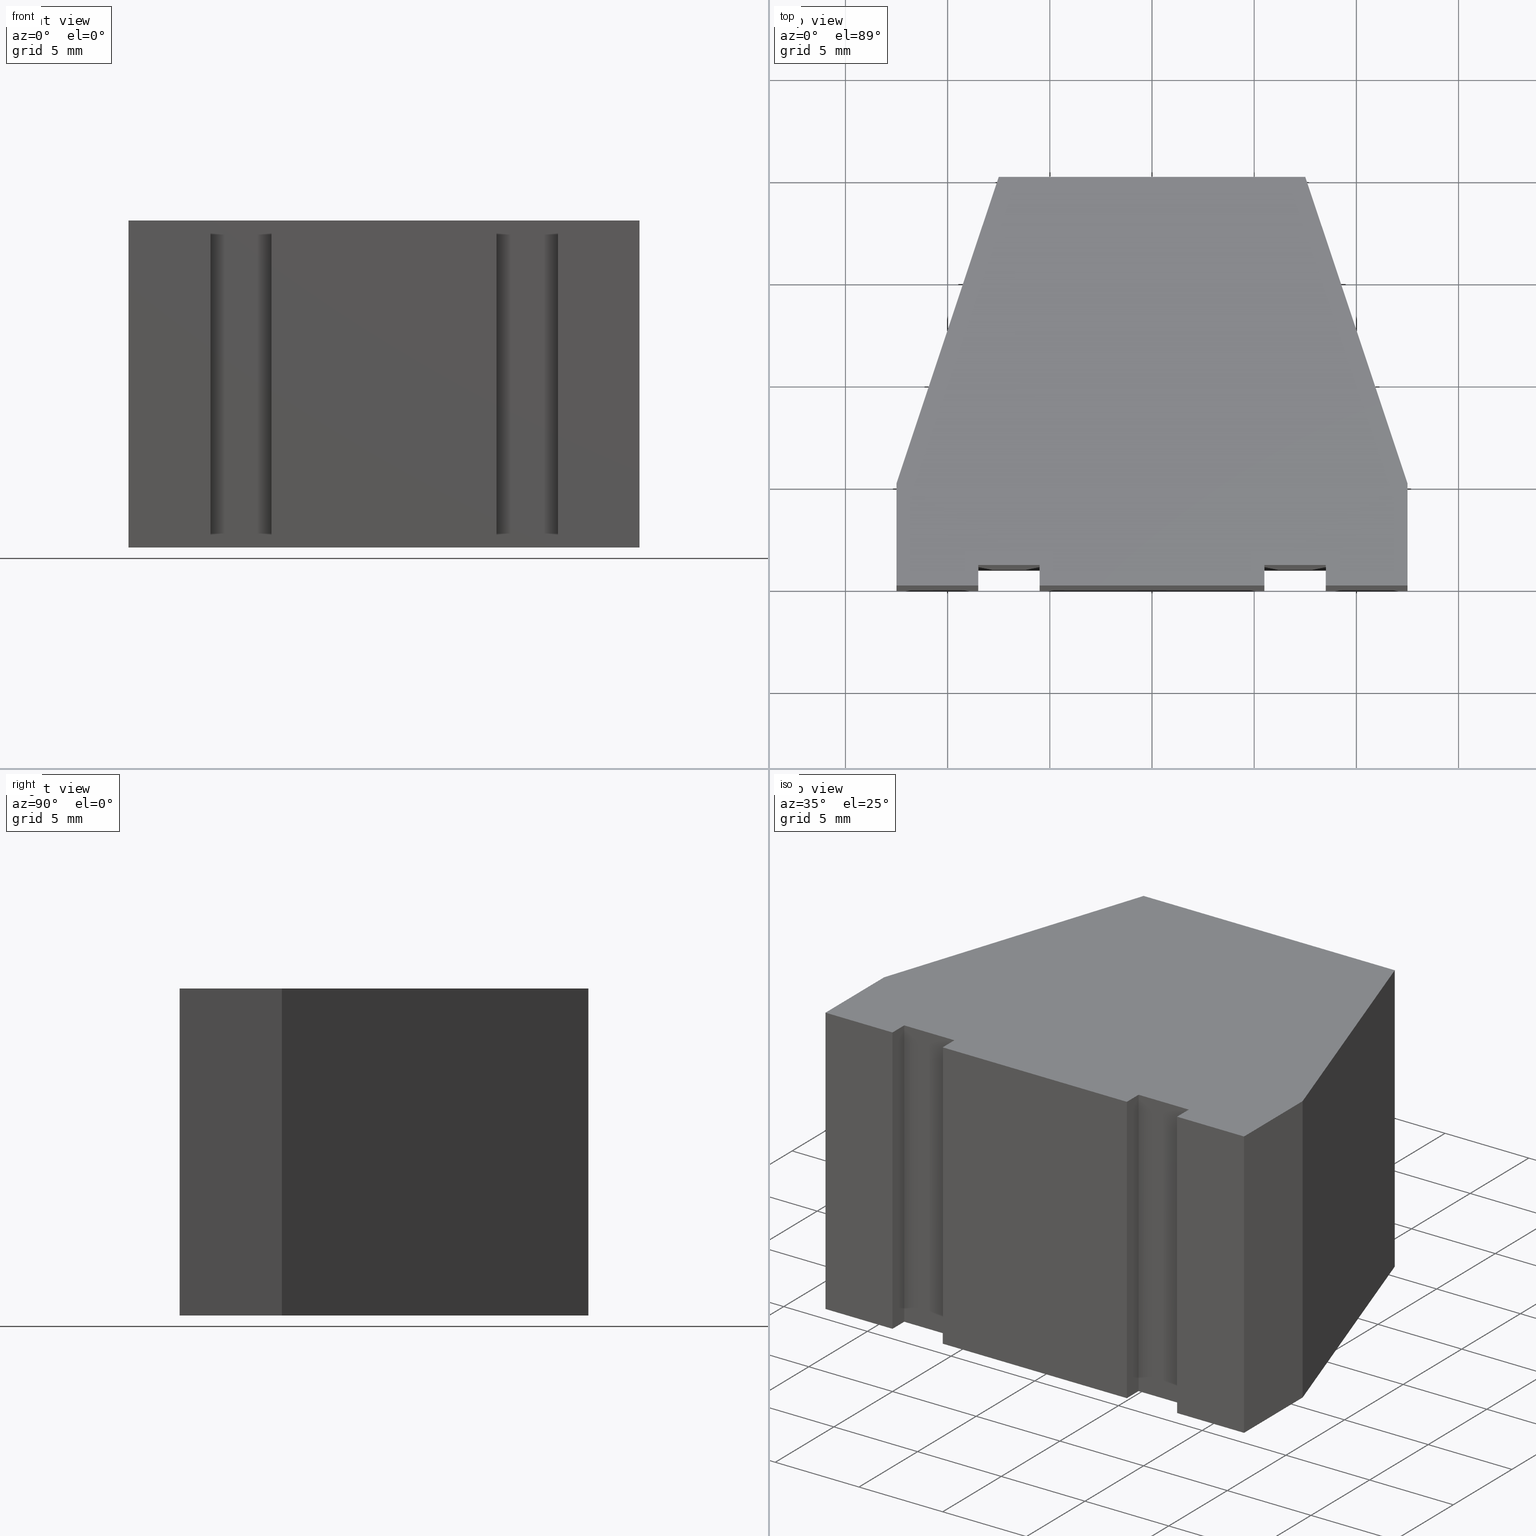
[diagram: canonical four-view strip — front | top / right | iso, engineering-drawing reading convention]
A machine part, canonical four-view strip (front | top / right | iso — engineering-drawing reading convention). The complete STEP part file that produces these views, byte-faithful:
ISO-10303-21;
HEADER;
/* Generated by software containing ST-Developer
 * from STEP Tools, Inc. (www.steptools.com) 
 */

FILE_DESCRIPTION(
/* description */ (''),
/* implementation_level */ '2;1');

FILE_NAME(
/* name */ 'E_3_01_06_07_00_WKZ-0113.stp',
/* time_stamp */ '2025-11-24T11:40:00+01:00',
/* author */ ('d.fischer'),
/* organization */ (''),
/* preprocessor_version */ 'ST-DEVELOPER v20',
/* originating_system */ 'Autodesk Inventor 2025',
/* authorisation */ '');

FILE_SCHEMA (('AUTOMOTIVE_DESIGN { 1 0 10303 214 3 1 1 }'));
ENDSEC;

DATA;
#10=MECHANICAL_DESIGN_GEOMETRIC_PRESENTATION_REPRESENTATION('',(#14,#15,
#16,#17),#525);
#11=SHAPE_REPRESENTATION_RELATIONSHIP('SRR','None',#532,#12);
#12=ADVANCED_BREP_SHAPE_REPRESENTATION('',(#13),#524);
#13=MANIFOLD_SOLID_BREP('Volumenk\X\F6rper1',#320);
#14=STYLED_ITEM('',(#542),#308);
#15=STYLED_ITEM('',(#541),#312);
#16=STYLED_ITEM('',(#541),#318);
#17=STYLED_ITEM('',(#541),#13);
#18=FACE_OUTER_BOUND('',#34,.T.);
#19=FACE_OUTER_BOUND('',#35,.T.);
#20=FACE_OUTER_BOUND('',#36,.T.);
#21=FACE_OUTER_BOUND('',#37,.T.);
#22=FACE_OUTER_BOUND('',#38,.T.);
#23=FACE_OUTER_BOUND('',#39,.T.);
#24=FACE_OUTER_BOUND('',#40,.T.);
#25=FACE_OUTER_BOUND('',#41,.T.);
#26=FACE_OUTER_BOUND('',#42,.T.);
#27=FACE_OUTER_BOUND('',#43,.T.);
#28=FACE_OUTER_BOUND('',#44,.T.);
#29=FACE_OUTER_BOUND('',#45,.T.);
#30=FACE_OUTER_BOUND('',#46,.T.);
#31=FACE_OUTER_BOUND('',#47,.T.);
#32=FACE_OUTER_BOUND('',#48,.T.);
#33=FACE_OUTER_BOUND('',#49,.T.);
#34=EDGE_LOOP('',(#204,#205,#206,#207,#208,#209,#210,#211,#212,#213,#214,
#215,#216,#217));
#35=EDGE_LOOP('',(#218,#219,#220,#221));
#36=EDGE_LOOP('',(#222,#223,#224,#225));
#37=EDGE_LOOP('',(#226,#227,#228,#229));
#38=EDGE_LOOP('',(#230,#231,#232,#233));
#39=EDGE_LOOP('',(#234,#235,#236,#237));
#40=EDGE_LOOP('',(#238,#239,#240,#241));
#41=EDGE_LOOP('',(#242,#243,#244,#245));
#42=EDGE_LOOP('',(#246,#247,#248,#249));
#43=EDGE_LOOP('',(#250,#251,#252,#253));
#44=EDGE_LOOP('',(#254,#255,#256,#257));
#45=EDGE_LOOP('',(#258,#259,#260,#261));
#46=EDGE_LOOP('',(#262,#263,#264,#265));
#47=EDGE_LOOP('',(#266,#267,#268,#269));
#48=EDGE_LOOP('',(#270,#271,#272,#273));
#49=EDGE_LOOP('',(#274,#275,#276,#277,#278,#279,#280,#281,#282,#283,#284,
#285,#286,#287));
#50=LINE('',#439,#92);
#51=LINE('',#441,#93);
#52=LINE('',#443,#94);
#53=LINE('',#445,#95);
#54=LINE('',#447,#96);
#55=LINE('',#449,#97);
#56=LINE('',#451,#98);
#57=LINE('',#453,#99);
#58=LINE('',#455,#100);
#59=LINE('',#457,#101);
#60=LINE('',#459,#102);
#61=LINE('',#461,#103);
#62=LINE('',#463,#104);
#63=LINE('',#464,#105);
#64=LINE('',#468,#106);
#65=LINE('',#469,#107);
#66=LINE('',#470,#108);
#67=LINE('',#473,#109);
#68=LINE('',#474,#110);
#69=LINE('',#477,#111);
#70=LINE('',#478,#112);
#71=LINE('',#481,#113);
#72=LINE('',#482,#114);
#73=LINE('',#485,#115);
#74=LINE('',#486,#116);
#75=LINE('',#489,#117);
#76=LINE('',#490,#118);
#77=LINE('',#493,#119);
#78=LINE('',#494,#120);
#79=LINE('',#497,#121);
#80=LINE('',#498,#122);
#81=LINE('',#501,#123);
#82=LINE('',#502,#124);
#83=LINE('',#505,#125);
#84=LINE('',#506,#126);
#85=LINE('',#509,#127);
#86=LINE('',#510,#128);
#87=LINE('',#513,#129);
#88=LINE('',#514,#130);
#89=LINE('',#517,#131);
#90=LINE('',#518,#132);
#91=LINE('',#520,#133);
#92=VECTOR('',#363,10.);
#93=VECTOR('',#364,10.);
#94=VECTOR('',#365,10.);
#95=VECTOR('',#366,10.);
#96=VECTOR('',#367,10.);
#97=VECTOR('',#368,10.);
#98=VECTOR('',#369,10.);
#99=VECTOR('',#370,10.);
#100=VECTOR('',#371,10.);
#101=VECTOR('',#372,10.);
#102=VECTOR('',#373,10.);
#103=VECTOR('',#374,10.);
#104=VECTOR('',#375,10.);
#105=VECTOR('',#376,10.);
#106=VECTOR('',#379,10.);
#107=VECTOR('',#380,10.);
#108=VECTOR('',#381,10.);
#109=VECTOR('',#384,10.);
#110=VECTOR('',#385,10.);
#111=VECTOR('',#388,10.);
#112=VECTOR('',#389,10.);
#113=VECTOR('',#392,10.);
#114=VECTOR('',#393,10.);
#115=VECTOR('',#396,10.);
#116=VECTOR('',#397,10.);
#117=VECTOR('',#400,10.);
#118=VECTOR('',#401,10.);
#119=VECTOR('',#404,10.);
#120=VECTOR('',#405,10.);
#121=VECTOR('',#408,10.);
#122=VECTOR('',#409,10.);
#123=VECTOR('',#412,10.);
#124=VECTOR('',#413,10.);
#125=VECTOR('',#416,10.);
#126=VECTOR('',#417,10.);
#127=VECTOR('',#420,10.);
#128=VECTOR('',#421,10.);
#129=VECTOR('',#424,10.);
#130=VECTOR('',#425,10.);
#131=VECTOR('',#428,10.);
#132=VECTOR('',#429,10.);
#133=VECTOR('',#432,10.);
#134=VERTEX_POINT('',#437);
#135=VERTEX_POINT('',#438);
#136=VERTEX_POINT('',#440);
#137=VERTEX_POINT('',#442);
#138=VERTEX_POINT('',#444);
#139=VERTEX_POINT('',#446);
#140=VERTEX_POINT('',#448);
#141=VERTEX_POINT('',#450);
#142=VERTEX_POINT('',#452);
#143=VERTEX_POINT('',#454);
#144=VERTEX_POINT('',#456);
#145=VERTEX_POINT('',#458);
#146=VERTEX_POINT('',#460);
#147=VERTEX_POINT('',#462);
#148=VERTEX_POINT('',#466);
#149=VERTEX_POINT('',#467);
#150=VERTEX_POINT('',#472);
#151=VERTEX_POINT('',#476);
#152=VERTEX_POINT('',#480);
#153=VERTEX_POINT('',#484);
#154=VERTEX_POINT('',#488);
#155=VERTEX_POINT('',#492);
#156=VERTEX_POINT('',#496);
#157=VERTEX_POINT('',#500);
#158=VERTEX_POINT('',#504);
#159=VERTEX_POINT('',#508);
#160=VERTEX_POINT('',#512);
#161=VERTEX_POINT('',#516);
#162=EDGE_CURVE('',#134,#135,#50,.T.);
#163=EDGE_CURVE('',#136,#134,#51,.T.);
#164=EDGE_CURVE('',#137,#136,#52,.T.);
#165=EDGE_CURVE('',#138,#137,#53,.T.);
#166=EDGE_CURVE('',#139,#138,#54,.T.);
#167=EDGE_CURVE('',#140,#139,#55,.T.);
#168=EDGE_CURVE('',#141,#140,#56,.T.);
#169=EDGE_CURVE('',#142,#141,#57,.T.);
#170=EDGE_CURVE('',#143,#142,#58,.T.);
#171=EDGE_CURVE('',#144,#143,#59,.T.);
#172=EDGE_CURVE('',#145,#144,#60,.T.);
#173=EDGE_CURVE('',#146,#145,#61,.T.);
#174=EDGE_CURVE('',#147,#146,#62,.T.);
#175=EDGE_CURVE('',#135,#147,#63,.T.);
#176=EDGE_CURVE('',#148,#149,#64,.T.);
#177=EDGE_CURVE('',#149,#137,#65,.T.);
#178=EDGE_CURVE('',#148,#136,#66,.T.);
#179=EDGE_CURVE('',#149,#150,#67,.T.);
#180=EDGE_CURVE('',#150,#138,#68,.T.);
#181=EDGE_CURVE('',#150,#151,#69,.T.);
#182=EDGE_CURVE('',#151,#139,#70,.T.);
#183=EDGE_CURVE('',#151,#152,#71,.T.);
#184=EDGE_CURVE('',#152,#140,#72,.T.);
#185=EDGE_CURVE('',#152,#153,#73,.T.);
#186=EDGE_CURVE('',#153,#141,#74,.T.);
#187=EDGE_CURVE('',#153,#154,#75,.T.);
#188=EDGE_CURVE('',#154,#142,#76,.T.);
#189=EDGE_CURVE('',#154,#155,#77,.T.);
#190=EDGE_CURVE('',#155,#143,#78,.T.);
#191=EDGE_CURVE('',#155,#156,#79,.T.);
#192=EDGE_CURVE('',#156,#144,#80,.T.);
#193=EDGE_CURVE('',#156,#157,#81,.T.);
#194=EDGE_CURVE('',#157,#145,#82,.T.);
#195=EDGE_CURVE('',#157,#158,#83,.T.);
#196=EDGE_CURVE('',#158,#146,#84,.T.);
#197=EDGE_CURVE('',#158,#159,#85,.T.);
#198=EDGE_CURVE('',#159,#147,#86,.T.);
#199=EDGE_CURVE('',#159,#160,#87,.T.);
#200=EDGE_CURVE('',#160,#135,#88,.T.);
#201=EDGE_CURVE('',#160,#161,#89,.T.);
#202=EDGE_CURVE('',#134,#161,#90,.T.);
#203=EDGE_CURVE('',#161,#148,#91,.T.);
#204=ORIENTED_EDGE('',*,*,#162,.F.);
#205=ORIENTED_EDGE('',*,*,#163,.F.);
#206=ORIENTED_EDGE('',*,*,#164,.F.);
#207=ORIENTED_EDGE('',*,*,#165,.F.);
#208=ORIENTED_EDGE('',*,*,#166,.F.);
#209=ORIENTED_EDGE('',*,*,#167,.F.);
#210=ORIENTED_EDGE('',*,*,#168,.F.);
#211=ORIENTED_EDGE('',*,*,#169,.F.);
#212=ORIENTED_EDGE('',*,*,#170,.F.);
#213=ORIENTED_EDGE('',*,*,#171,.F.);
#214=ORIENTED_EDGE('',*,*,#172,.F.);
#215=ORIENTED_EDGE('',*,*,#173,.F.);
#216=ORIENTED_EDGE('',*,*,#174,.F.);
#217=ORIENTED_EDGE('',*,*,#175,.F.);
#218=ORIENTED_EDGE('',*,*,#176,.T.);
#219=ORIENTED_EDGE('',*,*,#177,.T.);
#220=ORIENTED_EDGE('',*,*,#164,.T.);
#221=ORIENTED_EDGE('',*,*,#178,.F.);
#222=ORIENTED_EDGE('',*,*,#179,.T.);
#223=ORIENTED_EDGE('',*,*,#180,.T.);
#224=ORIENTED_EDGE('',*,*,#165,.T.);
#225=ORIENTED_EDGE('',*,*,#177,.F.);
#226=ORIENTED_EDGE('',*,*,#181,.T.);
#227=ORIENTED_EDGE('',*,*,#182,.T.);
#228=ORIENTED_EDGE('',*,*,#166,.T.);
#229=ORIENTED_EDGE('',*,*,#180,.F.);
#230=ORIENTED_EDGE('',*,*,#183,.T.);
#231=ORIENTED_EDGE('',*,*,#184,.T.);
#232=ORIENTED_EDGE('',*,*,#167,.T.);
#233=ORIENTED_EDGE('',*,*,#182,.F.);
#234=ORIENTED_EDGE('',*,*,#185,.T.);
#235=ORIENTED_EDGE('',*,*,#186,.T.);
#236=ORIENTED_EDGE('',*,*,#168,.T.);
#237=ORIENTED_EDGE('',*,*,#184,.F.);
#238=ORIENTED_EDGE('',*,*,#187,.T.);
#239=ORIENTED_EDGE('',*,*,#188,.T.);
#240=ORIENTED_EDGE('',*,*,#169,.T.);
#241=ORIENTED_EDGE('',*,*,#186,.F.);
#242=ORIENTED_EDGE('',*,*,#189,.T.);
#243=ORIENTED_EDGE('',*,*,#190,.T.);
#244=ORIENTED_EDGE('',*,*,#170,.T.);
#245=ORIENTED_EDGE('',*,*,#188,.F.);
#246=ORIENTED_EDGE('',*,*,#191,.T.);
#247=ORIENTED_EDGE('',*,*,#192,.T.);
#248=ORIENTED_EDGE('',*,*,#171,.T.);
#249=ORIENTED_EDGE('',*,*,#190,.F.);
#250=ORIENTED_EDGE('',*,*,#193,.T.);
#251=ORIENTED_EDGE('',*,*,#194,.T.);
#252=ORIENTED_EDGE('',*,*,#172,.T.);
#253=ORIENTED_EDGE('',*,*,#192,.F.);
#254=ORIENTED_EDGE('',*,*,#195,.T.);
#255=ORIENTED_EDGE('',*,*,#196,.T.);
#256=ORIENTED_EDGE('',*,*,#173,.T.);
#257=ORIENTED_EDGE('',*,*,#194,.F.);
#258=ORIENTED_EDGE('',*,*,#197,.T.);
#259=ORIENTED_EDGE('',*,*,#198,.T.);
#260=ORIENTED_EDGE('',*,*,#174,.T.);
#261=ORIENTED_EDGE('',*,*,#196,.F.);
#262=ORIENTED_EDGE('',*,*,#199,.T.);
#263=ORIENTED_EDGE('',*,*,#200,.T.);
#264=ORIENTED_EDGE('',*,*,#175,.T.);
#265=ORIENTED_EDGE('',*,*,#198,.F.);
#266=ORIENTED_EDGE('',*,*,#201,.T.);
#267=ORIENTED_EDGE('',*,*,#202,.F.);
#268=ORIENTED_EDGE('',*,*,#162,.T.);
#269=ORIENTED_EDGE('',*,*,#200,.F.);
#270=ORIENTED_EDGE('',*,*,#203,.T.);
#271=ORIENTED_EDGE('',*,*,#178,.T.);
#272=ORIENTED_EDGE('',*,*,#163,.T.);
#273=ORIENTED_EDGE('',*,*,#202,.T.);
#274=ORIENTED_EDGE('',*,*,#176,.F.);
#275=ORIENTED_EDGE('',*,*,#203,.F.);
#276=ORIENTED_EDGE('',*,*,#201,.F.);
#277=ORIENTED_EDGE('',*,*,#199,.F.);
#278=ORIENTED_EDGE('',*,*,#197,.F.);
#279=ORIENTED_EDGE('',*,*,#195,.F.);
#280=ORIENTED_EDGE('',*,*,#193,.F.);
#281=ORIENTED_EDGE('',*,*,#191,.F.);
#282=ORIENTED_EDGE('',*,*,#189,.F.);
#283=ORIENTED_EDGE('',*,*,#187,.F.);
#284=ORIENTED_EDGE('',*,*,#185,.F.);
#285=ORIENTED_EDGE('',*,*,#183,.F.);
#286=ORIENTED_EDGE('',*,*,#181,.F.);
#287=ORIENTED_EDGE('',*,*,#179,.F.);
#288=PLANE('',#343);
#289=PLANE('',#344);
#290=PLANE('',#345);
#291=PLANE('',#346);
#292=PLANE('',#347);
#293=PLANE('',#348);
#294=PLANE('',#349);
#295=PLANE('',#350);
#296=PLANE('',#351);
#297=PLANE('',#352);
#298=PLANE('',#353);
#299=PLANE('',#354);
#300=PLANE('',#355);
#301=PLANE('',#356);
#302=PLANE('',#357);
#303=PLANE('',#358);
#304=ADVANCED_FACE('',(#18),#288,.F.);
#305=ADVANCED_FACE('',(#19),#289,.T.);
#306=ADVANCED_FACE('',(#20),#290,.T.);
#307=ADVANCED_FACE('',(#21),#291,.T.);
#308=ADVANCED_FACE('',(#22),#292,.T.);
#309=ADVANCED_FACE('',(#23),#293,.T.);
#310=ADVANCED_FACE('',(#24),#294,.T.);
#311=ADVANCED_FACE('',(#25),#295,.T.);
#312=ADVANCED_FACE('',(#26),#296,.T.);
#313=ADVANCED_FACE('',(#27),#297,.T.);
#314=ADVANCED_FACE('',(#28),#298,.T.);
#315=ADVANCED_FACE('',(#29),#299,.T.);
#316=ADVANCED_FACE('',(#30),#300,.T.);
#317=ADVANCED_FACE('',(#31),#301,.T.);
#318=ADVANCED_FACE('',(#32),#302,.T.);
#319=ADVANCED_FACE('',(#33),#303,.T.);
#320=CLOSED_SHELL('',(#304,#305,#306,#307,#308,#309,#310,#311,#312,#313,
#314,#315,#316,#317,#318,#319));
#321=DERIVED_UNIT_ELEMENT(#324,1.);
#322=DERIVED_UNIT_ELEMENT(#527,-3.);
#323=DIMENSIONAL_EXPONENTS(0.,1.,0.,0.,0.,0.,0.);
#324=(
CONVERSION_BASED_UNIT('gram',#326)
MASS_UNIT()
NAMED_UNIT(#323)
);
#325=(
MASS_UNIT()
NAMED_UNIT(*)
SI_UNIT(.KILO.,.GRAM.)
);
#326=MASS_MEASURE_WITH_UNIT(MASS_MEASURE(0.001),#325);
#327=DERIVED_UNIT((#321,#322));
#328=MEASURE_REPRESENTATION_ITEM('density measure',
POSITIVE_RATIO_MEASURE(8.03),#327);
#329=PROPERTY_DEFINITION_REPRESENTATION(#334,#331);
#330=PROPERTY_DEFINITION_REPRESENTATION(#335,#332);
#331=REPRESENTATION('material name',(#333),#524);
#332=REPRESENTATION('density',(#328),#524);
#333=DESCRIPTIVE_REPRESENTATION_ITEM('1.4301','1.4301');
#334=PROPERTY_DEFINITION('material property','material name',#534);
#335=PROPERTY_DEFINITION('material property','density of part',#534);
#336=DATE_TIME_ROLE('creation_date');
#337=APPLIED_DATE_AND_TIME_ASSIGNMENT(#338,#336,(#534));
#338=DATE_AND_TIME(#339,#340);
#339=CALENDAR_DATE(2011,18,10);
#340=LOCAL_TIME(0,0,0.,#341);
#341=COORDINATED_UNIVERSAL_TIME_OFFSET(0,0,.BEHIND.);
#342=AXIS2_PLACEMENT_3D('',#435,#359,#360);
#343=AXIS2_PLACEMENT_3D('',#436,#361,#362);
#344=AXIS2_PLACEMENT_3D('',#465,#377,#378);
#345=AXIS2_PLACEMENT_3D('',#471,#382,#383);
#346=AXIS2_PLACEMENT_3D('',#475,#386,#387);
#347=AXIS2_PLACEMENT_3D('',#479,#390,#391);
#348=AXIS2_PLACEMENT_3D('',#483,#394,#395);
#349=AXIS2_PLACEMENT_3D('',#487,#398,#399);
#350=AXIS2_PLACEMENT_3D('',#491,#402,#403);
#351=AXIS2_PLACEMENT_3D('',#495,#406,#407);
#352=AXIS2_PLACEMENT_3D('',#499,#410,#411);
#353=AXIS2_PLACEMENT_3D('',#503,#414,#415);
#354=AXIS2_PLACEMENT_3D('',#507,#418,#419);
#355=AXIS2_PLACEMENT_3D('',#511,#422,#423);
#356=AXIS2_PLACEMENT_3D('',#515,#426,#427);
#357=AXIS2_PLACEMENT_3D('',#519,#430,#431);
#358=AXIS2_PLACEMENT_3D('',#521,#433,#434);
#359=DIRECTION('axis',(0.,0.,1.));
#360=DIRECTION('refdir',(1.,0.,0.));
#361=DIRECTION('center_axis',(0.,0.,1.));
#362=DIRECTION('ref_axis',(1.,0.,0.));
#363=DIRECTION('',(0.,1.,0.));
#364=DIRECTION('',(1.,0.,0.));
#365=DIRECTION('',(0.,-1.,0.));
#366=DIRECTION('',(1.,0.,0.));
#367=DIRECTION('',(0.,1.,0.));
#368=DIRECTION('',(1.,0.,0.));
#369=DIRECTION('',(0.,-1.,0.));
#370=DIRECTION('',(1.,0.,0.));
#371=DIRECTION('',(0.,1.,0.));
#372=DIRECTION('',(1.,0.,0.));
#373=DIRECTION('',(0.,-1.,0.));
#374=DIRECTION('',(-0.316227766016838,-0.948683298050514,0.));
#375=DIRECTION('',(-1.,0.,0.));
#376=DIRECTION('',(-0.316227766016838,0.948683298050514,0.));
#377=DIRECTION('center_axis',(-1.,0.,0.));
#378=DIRECTION('ref_axis',(0.,0.,1.));
#379=DIRECTION('',(0.,1.,0.));
#380=DIRECTION('',(0.,0.,-1.));
#381=DIRECTION('',(0.,0.,-1.));
#382=DIRECTION('center_axis',(0.,-1.,0.));
#383=DIRECTION('ref_axis',(0.,0.,-1.));
#384=DIRECTION('',(-1.,0.,0.));
#385=DIRECTION('',(0.,0.,-1.));
#386=DIRECTION('center_axis',(1.,0.,0.));
#387=DIRECTION('ref_axis',(0.,0.,-1.));
#388=DIRECTION('',(0.,-1.,0.));
#389=DIRECTION('',(0.,0.,-1.));
#390=DIRECTION('center_axis',(0.,-1.,0.));
#391=DIRECTION('ref_axis',(0.,0.,-1.));
#392=DIRECTION('',(-1.,0.,0.));
#393=DIRECTION('',(0.,0.,-1.));
#394=DIRECTION('center_axis',(-1.,0.,0.));
#395=DIRECTION('ref_axis',(0.,0.,1.));
#396=DIRECTION('',(0.,1.,0.));
#397=DIRECTION('',(0.,0.,-1.));
#398=DIRECTION('center_axis',(0.,-1.,0.));
#399=DIRECTION('ref_axis',(0.,0.,-1.));
#400=DIRECTION('',(-1.,0.,0.));
#401=DIRECTION('',(0.,0.,-1.));
#402=DIRECTION('center_axis',(1.,0.,0.));
#403=DIRECTION('ref_axis',(0.,0.,-1.));
#404=DIRECTION('',(0.,-1.,0.));
#405=DIRECTION('',(0.,0.,-1.));
#406=DIRECTION('center_axis',(0.,-1.,0.));
#407=DIRECTION('ref_axis',(0.,0.,-1.));
#408=DIRECTION('',(-1.,0.,0.));
#409=DIRECTION('',(0.,0.,-1.));
#410=DIRECTION('center_axis',(-1.,0.,0.));
#411=DIRECTION('ref_axis',(0.,0.,1.));
#412=DIRECTION('',(0.,1.,0.));
#413=DIRECTION('',(0.,0.,-1.));
#414=DIRECTION('center_axis',(-0.948683298050514,0.316227766016838,0.));
#415=DIRECTION('ref_axis',(0.,0.,1.));
#416=DIRECTION('',(0.316227766016838,0.948683298050514,0.));
#417=DIRECTION('',(0.,0.,-1.));
#418=DIRECTION('center_axis',(0.,1.,0.));
#419=DIRECTION('ref_axis',(0.,0.,1.));
#420=DIRECTION('',(1.,0.,0.));
#421=DIRECTION('',(0.,0.,-1.));
#422=DIRECTION('center_axis',(0.948683298050514,0.316227766016838,0.));
#423=DIRECTION('ref_axis',(0.,0.,-1.));
#424=DIRECTION('',(0.316227766016838,-0.948683298050514,0.));
#425=DIRECTION('',(0.,0.,-1.));
#426=DIRECTION('center_axis',(1.,0.,0.));
#427=DIRECTION('ref_axis',(0.,0.,-1.));
#428=DIRECTION('',(0.,-1.,0.));
#429=DIRECTION('',(0.,0.,1.));
#430=DIRECTION('center_axis',(0.,-1.,0.));
#431=DIRECTION('ref_axis',(0.,0.,-1.));
#432=DIRECTION('',(-1.,0.,0.));
#433=DIRECTION('center_axis',(0.,0.,1.));
#434=DIRECTION('ref_axis',(1.,0.,0.));
#435=CARTESIAN_POINT('',(0.,0.,0.));
#436=CARTESIAN_POINT('Origin',(-4.16333634234434E-16,8.50573569821287,-8.));
#437=CARTESIAN_POINT('',(12.5,0.,-8.));
#438=CARTESIAN_POINT('',(12.5,5.,-8.));
#439=CARTESIAN_POINT('',(12.5,5.,-8.));
#440=CARTESIAN_POINT('',(8.5,0.,-8.));
#441=CARTESIAN_POINT('',(12.5,0.,-8.));
#442=CARTESIAN_POINT('',(8.5,1.,-8.));
#443=CARTESIAN_POINT('',(8.5,0.,-8.));
#444=CARTESIAN_POINT('',(5.5,1.,-8.));
#445=CARTESIAN_POINT('',(8.5,1.,-8.));
#446=CARTESIAN_POINT('',(5.5,0.,-8.));
#447=CARTESIAN_POINT('',(5.5,1.,-8.));
#448=CARTESIAN_POINT('',(-5.5,0.,-8.));
#449=CARTESIAN_POINT('',(5.5,0.,-8.));
#450=CARTESIAN_POINT('',(-5.5,1.,-8.));
#451=CARTESIAN_POINT('',(-5.5,0.,-8.));
#452=CARTESIAN_POINT('',(-8.5,1.,-8.));
#453=CARTESIAN_POINT('',(-5.5,1.,-8.));
#454=CARTESIAN_POINT('',(-8.5,0.,-8.));
#455=CARTESIAN_POINT('',(-8.5,1.,-8.));
#456=CARTESIAN_POINT('',(-12.5,0.,-8.));
#457=CARTESIAN_POINT('',(-8.5,0.,-8.));
#458=CARTESIAN_POINT('',(-12.5,5.,-8.));
#459=CARTESIAN_POINT('',(-12.5,0.,-8.));
#460=CARTESIAN_POINT('',(-7.5,20.,-8.));
#461=CARTESIAN_POINT('',(-12.5,5.,-8.));
#462=CARTESIAN_POINT('',(7.5,20.,-8.));
#463=CARTESIAN_POINT('',(-7.5,20.,-8.));
#464=CARTESIAN_POINT('',(7.5,20.,-8.));
#465=CARTESIAN_POINT('Origin',(8.5,0.,0.));
#466=CARTESIAN_POINT('',(8.5,0.,8.));
#467=CARTESIAN_POINT('',(8.5,1.,8.));
#468=CARTESIAN_POINT('',(8.5,0.,8.));
#469=CARTESIAN_POINT('',(8.5,1.,0.));
#470=CARTESIAN_POINT('',(8.5,0.,0.));
#471=CARTESIAN_POINT('Origin',(8.5,1.,0.));
#472=CARTESIAN_POINT('',(5.5,1.,8.));
#473=CARTESIAN_POINT('',(8.5,1.,8.));
#474=CARTESIAN_POINT('',(5.5,1.,0.));
#475=CARTESIAN_POINT('Origin',(5.5,1.,0.));
#476=CARTESIAN_POINT('',(5.5,0.,8.));
#477=CARTESIAN_POINT('',(5.5,1.,8.));
#478=CARTESIAN_POINT('',(5.5,0.,0.));
#479=CARTESIAN_POINT('Origin',(5.5,0.,0.));
#480=CARTESIAN_POINT('',(-5.5,0.,8.));
#481=CARTESIAN_POINT('',(5.5,0.,8.));
#482=CARTESIAN_POINT('',(-5.5,0.,0.));
#483=CARTESIAN_POINT('Origin',(-5.5,0.,0.));
#484=CARTESIAN_POINT('',(-5.5,1.,8.));
#485=CARTESIAN_POINT('',(-5.5,0.,8.));
#486=CARTESIAN_POINT('',(-5.5,1.,0.));
#487=CARTESIAN_POINT('Origin',(-5.5,1.,0.));
#488=CARTESIAN_POINT('',(-8.5,1.,8.));
#489=CARTESIAN_POINT('',(-5.5,1.,8.));
#490=CARTESIAN_POINT('',(-8.5,1.,0.));
#491=CARTESIAN_POINT('Origin',(-8.5,1.,0.));
#492=CARTESIAN_POINT('',(-8.5,0.,8.));
#493=CARTESIAN_POINT('',(-8.5,1.,8.));
#494=CARTESIAN_POINT('',(-8.5,0.,0.));
#495=CARTESIAN_POINT('Origin',(-8.5,0.,0.));
#496=CARTESIAN_POINT('',(-12.5,0.,8.));
#497=CARTESIAN_POINT('',(-8.5,0.,8.));
#498=CARTESIAN_POINT('',(-12.5,0.,0.));
#499=CARTESIAN_POINT('Origin',(-12.5,0.,0.));
#500=CARTESIAN_POINT('',(-12.5,5.,8.));
#501=CARTESIAN_POINT('',(-12.5,0.,8.));
#502=CARTESIAN_POINT('',(-12.5,5.,0.));
#503=CARTESIAN_POINT('Origin',(-12.5,5.,0.));
#504=CARTESIAN_POINT('',(-7.5,20.,8.));
#505=CARTESIAN_POINT('',(-12.5,5.,8.));
#506=CARTESIAN_POINT('',(-7.5,20.,0.));
#507=CARTESIAN_POINT('Origin',(-7.5,20.,0.));
#508=CARTESIAN_POINT('',(7.5,20.,8.));
#509=CARTESIAN_POINT('',(-7.5,20.,8.));
#510=CARTESIAN_POINT('',(7.5,20.,0.));
#511=CARTESIAN_POINT('Origin',(7.5,20.,0.));
#512=CARTESIAN_POINT('',(12.5,5.,8.));
#513=CARTESIAN_POINT('',(7.5,20.,8.));
#514=CARTESIAN_POINT('',(12.5,5.,0.));
#515=CARTESIAN_POINT('Origin',(12.5,5.,0.));
#516=CARTESIAN_POINT('',(12.5,0.,8.));
#517=CARTESIAN_POINT('',(12.5,5.,8.));
#518=CARTESIAN_POINT('',(12.5,0.,0.));
#519=CARTESIAN_POINT('Origin',(12.5,0.,0.));
#520=CARTESIAN_POINT('',(12.5,0.,8.));
#521=CARTESIAN_POINT('Origin',(-5.20417042793042E-16,8.50573569821287,8.));
#522=UNCERTAINTY_MEASURE_WITH_UNIT(LENGTH_MEASURE(0.01),#526,
'DISTANCE_ACCURACY_VALUE',
'Maximum model space distance between geometric entities at asserted c
onnectivities');
#523=UNCERTAINTY_MEASURE_WITH_UNIT(LENGTH_MEASURE(0.01),#526,
'DISTANCE_ACCURACY_VALUE',
'Maximum model space distance between geometric entities at asserted c
onnectivities');
#524=(
GEOMETRIC_REPRESENTATION_CONTEXT(3)
GLOBAL_UNCERTAINTY_ASSIGNED_CONTEXT((#522))
GLOBAL_UNIT_ASSIGNED_CONTEXT((#526,#528,#529))
REPRESENTATION_CONTEXT('','3D')
);
#525=(
GEOMETRIC_REPRESENTATION_CONTEXT(3)
GLOBAL_UNCERTAINTY_ASSIGNED_CONTEXT((#523))
GLOBAL_UNIT_ASSIGNED_CONTEXT((#526,#528,#529))
REPRESENTATION_CONTEXT('','3D')
);
#526=(
LENGTH_UNIT()
NAMED_UNIT(*)
SI_UNIT(.MILLI.,.METRE.)
);
#527=(
LENGTH_UNIT()
NAMED_UNIT(*)
SI_UNIT(.CENTI.,.METRE.)
);
#528=(
NAMED_UNIT(*)
PLANE_ANGLE_UNIT()
SI_UNIT($,.RADIAN.)
);
#529=(
NAMED_UNIT(*)
SI_UNIT($,.STERADIAN.)
SOLID_ANGLE_UNIT()
);
#530=SHAPE_DEFINITION_REPRESENTATION(#531,#532);
#531=PRODUCT_DEFINITION_SHAPE('',$,#534);
#532=SHAPE_REPRESENTATION('',(#342),#524);
#533=PRODUCT_DEFINITION_CONTEXT('part definition',#538,'design');
#534=PRODUCT_DEFINITION('WKZ-0113','E_3_01_06_07_00_WKZ-0113',#535,#533);
#535=PRODUCT_DEFINITION_FORMATION('',$,#540);
#536=PRODUCT_RELATED_PRODUCT_CATEGORY('E_3_01_06_07_00_WKZ-0113',
'E_3_01_06_07_00_WKZ-0113',(#540));
#537=APPLICATION_PROTOCOL_DEFINITION('international standard',
'automotive_design',2009,#538);
#538=APPLICATION_CONTEXT(
'Core Data for Automotive Mechanical Design Process');
#539=PRODUCT_CONTEXT('part definition',#538,'mechanical');
#540=PRODUCT('WKZ-0113','E_3_01_06_07_00_WKZ-0113',$,(#539));
#541=PRESENTATION_STYLE_ASSIGNMENT((#543));
#542=PRESENTATION_STYLE_ASSIGNMENT((#544));
#543=SURFACE_STYLE_USAGE(.BOTH.,#547);
#544=SURFACE_STYLE_USAGE(.BOTH.,#548);
#545=SURFACE_STYLE_RENDERING_WITH_PROPERTIES($,#555,(#546));
#546=SURFACE_STYLE_TRANSPARENT(0.);
#547=SURFACE_SIDE_STYLE('',(#549,#545));
#548=SURFACE_SIDE_STYLE('',(#550));
#549=SURFACE_STYLE_FILL_AREA(#551);
#550=SURFACE_STYLE_FILL_AREA(#552);
#551=FILL_AREA_STYLE('',(#553));
#552=FILL_AREA_STYLE('',(#554));
#553=FILL_AREA_STYLE_COLOUR('',#555);
#554=FILL_AREA_STYLE_COLOUR('',#556);
#555=COLOUR_RGB('',0.92156862745098,0.92156862745098,0.92156862745098);
#556=COLOUR_RGB('',0.16078431372549,0.16078431372549,0.16078431372549);
ENDSEC;
END-ISO-10303-21;
